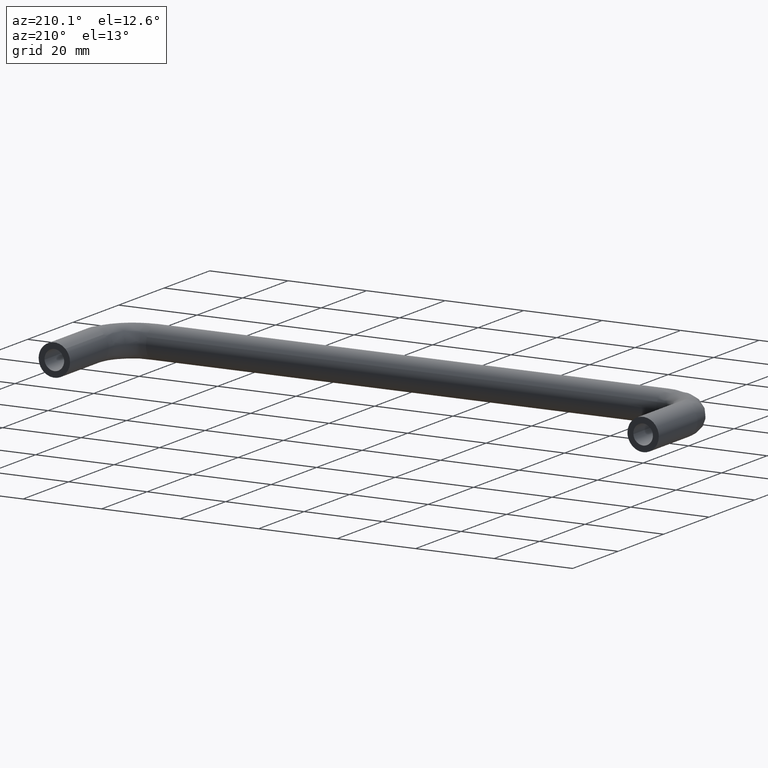
[diagram: clean part render]
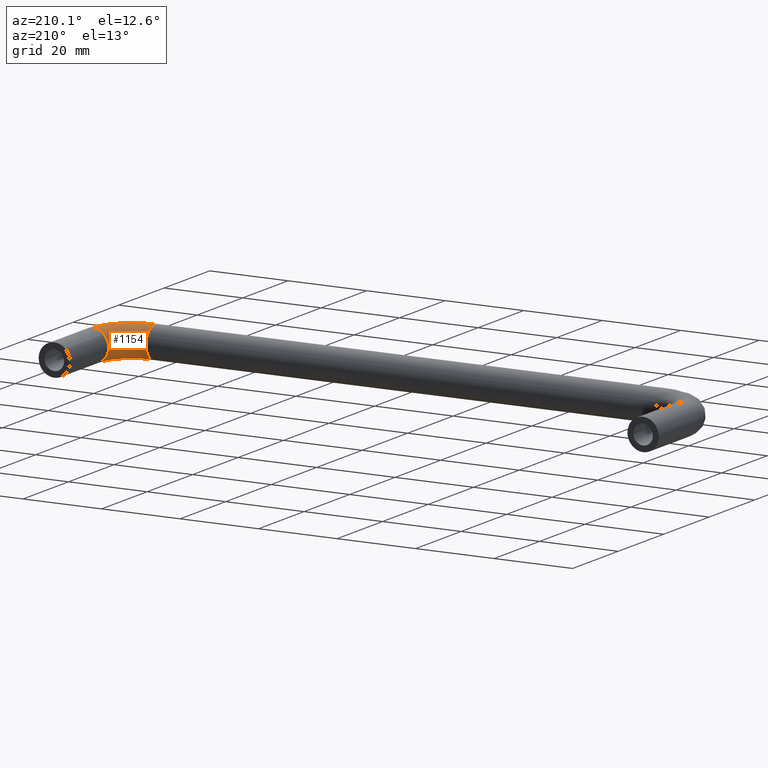
[diagram: same view with one face highlighted and labeled with its STEP entity id]
A machine part, auxiliary view. The second image highlights one B-rep face of the part: STEP entity #1154.
In plain terms, the highlighted face is a freeform B-spline surface patch.
Its self-contained STEP definition (entity closure, byte-faithful):
#428=CARTESIAN_POINT('',(149.949735840425290,-16.999999999984301,-3.999684176814744));
#429=VERTEX_POINT('',#428);
#445=CARTESIAN_POINT('',(146.0,-17.0,0.0));
#446=VERTEX_POINT('',#445);
#447=CARTESIAN_POINT('',(149.949735840425260,-16.999999999984301,-3.999684176814744));
#448=CARTESIAN_POINT('',(145.999999999999940,-17.0,-3.950047719547630));
#449=CARTESIAN_POINT('',(146.0,-17.0,0.0));
#457=(BOUNDED_CURVE()B_SPLINE_CURVE(2,(#447,#448,#449),.UNSPECIFIED.,.F.,.U.)B_SPLINE_CURVE_WITH_KNOTS((3,3),(0.252215704081906,0.500000000000000),.UNSPECIFIED.)CURVE()GEOMETRIC_REPRESENTATION_ITEM()RATIONAL_B_SPLINE_CURVE((0.994854295635648,0.709702639988498,1.0))REPRESENTATION_ITEM(''));
#458=EDGE_CURVE('',#429,#446,#457,.T.);
#460=CARTESIAN_POINT('',(147.196363281784100,-17.000000000000021,2.853002129734826));
#461=VERTEX_POINT('',#460);
#462=CARTESIAN_POINT('',(146.0,-17.0,0.0));
#463=CARTESIAN_POINT('',(146.000000000000060,-17.000000000000007,1.677339765870804));
#464=CARTESIAN_POINT('',(147.196363281784130,-17.000000000000025,2.853002129734826));
#472=(BOUNDED_CURVE()B_SPLINE_CURVE(2,(#462,#463,#464),.UNSPECIFIED.,.F.,.U.)B_SPLINE_CURVE_WITH_KNOTS((3,3),(0.500000000000000,0.626316793447803),.UNSPECIFIED.)CURVE()GEOMETRIC_REPRESENTATION_ITEM()RATIONAL_B_SPLINE_CURVE((1.0,0.852010671107516,0.853569642136559))REPRESENTATION_ITEM(''));
#473=EDGE_CURVE('',#446,#461,#472,.T.);
#591=CARTESIAN_POINT('',(150.278933189532300,-17.000000005944891,3.990262682553283));
#592=VERTEX_POINT('',#591);
#593=CARTESIAN_POINT('',(147.196363281784100,-17.000000000000021,2.853002129734826));
#594=CARTESIAN_POINT('',(148.363557349100920,-16.999999999999993,4.0));
#595=CARTESIAN_POINT('',(150.0,-17.0,4.0));
#596=CARTESIAN_POINT('',(150.139636647400290,-17.0,4.0));
#597=CARTESIAN_POINT('',(150.278933189532300,-17.000000005944887,3.990262682553283));
#605=(BOUNDED_CURVE()B_SPLINE_CURVE(2,(#593,#594,#595,#596,#597),.UNSPECIFIED.,.F.,.U.)B_SPLINE_CURVE_WITH_KNOTS((3,2,3),(0.626316793447803,0.750000000000000,0.762166329259532),.UNSPECIFIED.)CURVE()GEOMETRIC_REPRESENTATION_ITEM()RATIONAL_B_SPLINE_CURVE((0.853569642136559,0.855096110079032,1.0,0.985746258648125,0.972879842979988))REPRESENTATION_ITEM(''));
#606=EDGE_CURVE('',#461,#592,#605,.T.);
#650=CARTESIAN_POINT('',(140.0,-23.417578029477610,1.779396758769257));
#651=VERTEX_POINT('',#650);
#652=CARTESIAN_POINT('',(140.000000010251710,-27.278933189776939,3.990262682536179));
#653=VERTEX_POINT('',#652);
#654=CARTESIAN_POINT('',(140.000000000000030,-23.417578029477614,1.779396758769256));
#655=CARTESIAN_POINT('',(139.999999999999940,-24.520556473275803,4.0));
#656=CARTESIAN_POINT('',(140.0,-27.0,4.0));
#657=CARTESIAN_POINT('',(139.999999999999970,-27.139636647645887,4.0));
#658=CARTESIAN_POINT('',(140.000000010251650,-27.278933189776939,3.990262682536178));
#666=(BOUNDED_CURVE()B_SPLINE_CURVE(2,(#654,#655,#656,#657,#658),.UNSPECIFIED.,.F.,.U.)B_SPLINE_CURVE_WITH_KNOTS((3,2,3),(0.575619190626044,0.750000000000000,0.762166329280624),.UNSPECIFIED.)CURVE()GEOMETRIC_REPRESENTATION_ITEM()RATIONAL_B_SPLINE_CURVE((0.876408099965181,0.795700173772668,1.0,0.985746258623414,0.972879842935376))REPRESENTATION_ITEM(''));
#667=EDGE_CURVE('',#651,#653,#666,.T.);
#740=CARTESIAN_POINT('',(140.000000000115700,-24.246582932973361,-2.901498656702296));
#741=VERTEX_POINT('',#740);
#747=CARTESIAN_POINT('',(140.000000000366700,-26.949735840281949,-3.999684176812943));
#748=VERTEX_POINT('',#747);
#749=CARTESIAN_POINT('',(140.000000000366700,-26.949735840281949,-3.999684176812943));
#750=CARTESIAN_POINT('',(140.000000000221290,-25.383082967628233,-3.979995999691451));
#751=CARTESIAN_POINT('',(140.000000000115760,-24.246582932973364,-2.901498656702296));
#759=(BOUNDED_CURVE()B_SPLINE_CURVE(2,(#749,#750,#751),.UNSPECIFIED.,.F.,.U.)B_SPLINE_CURVE_WITH_KNOTS((3,3),(0.252215704094509,0.371049462387032),.UNSPECIFIED.)CURVE()GEOMETRIC_REPRESENTATION_ITEM()RATIONAL_B_SPLINE_CURVE((0.994854295606640,0.858099693000149,0.853699666128967))REPRESENTATION_ITEM(''));
#760=EDGE_CURVE('',#748,#741,#759,.T.);
#809=CARTESIAN_POINT('',(140.0,-23.0,0.0));
#810=VERTEX_POINT('',#809);
#811=CARTESIAN_POINT('',(140.0,-23.0,0.0));
#812=CARTESIAN_POINT('',(140.000000000000030,-23.000000000000004,0.938695717929676));
#813=CARTESIAN_POINT('',(139.999999999999940,-23.417578029477614,1.779396758769257));
#821=(BOUNDED_CURVE()B_SPLINE_CURVE(2,(#811,#812,#813),.UNSPECIFIED.,.F.,.U.)B_SPLINE_CURVE_WITH_KNOTS((3,3),(0.500000000000000,0.575619190626044),.UNSPECIFIED.)CURVE()GEOMETRIC_REPRESENTATION_ITEM()RATIONAL_B_SPLINE_CURVE((1.0,0.911406607413880,0.876408099965182))REPRESENTATION_ITEM(''));
#822=EDGE_CURVE('',#810,#651,#821,.T.);
#824=CARTESIAN_POINT('',(140.000000000115760,-24.246582932973364,-2.901498656702296));
#825=CARTESIAN_POINT('',(139.999999999999970,-23.0,-1.718536632860814));
#826=CARTESIAN_POINT('',(140.0,-23.0,0.0));
#834=(BOUNDED_CURVE()B_SPLINE_CURVE(2,(#824,#825,#826),.UNSPECIFIED.,.F.,.U.)B_SPLINE_CURVE_WITH_KNOTS((3,3),(0.371049462387032,0.500000000000000),.UNSPECIFIED.)CURVE()GEOMETRIC_REPRESENTATION_ITEM()RATIONAL_B_SPLINE_CURVE((0.853699666128967,0.848925047883251,1.0))REPRESENTATION_ITEM(''));
#835=EDGE_CURVE('',#741,#810,#834,.T.);
#1090=CARTESIAN_POINT('',(139.285232849516860,-27.254051255058759,3.990262710755871));
#1091=CARTESIAN_POINT('',(151.075932032510790,-28.075931724309864,3.990262710755869));
#1092=CARTESIAN_POINT('',(150.254051235169560,-16.285232564185716,3.990262710755872));
#1093=CARTESIAN_POINT('',(139.293173950873320,-27.140128195953455,3.998245639552521));
#1094=CARTESIAN_POINT('',(150.952877833911630,-27.952877529134813,3.998245639552521));
#1095=CARTESIAN_POINT('',(150.140128176285170,-16.293173668712253,3.998245639552521));
#1096=CARTESIAN_POINT('',(139.301133802077260,-27.025936151492424,3.999684176815264));
#1097=CARTESIAN_POINT('',(150.829533090293410,-27.829532788948779,3.999684176815264));
#1098=CARTESIAN_POINT('',(150.025936132045560,-16.301133523093657,3.999684176815263));
#1099=CARTESIAN_POINT('',(139.579260230315550,-23.035933744954079,4.049948336348676));
#1100=CARTESIAN_POINT('',(146.519724765259780,-23.519724583840723,4.049948336348674));
#1101=CARTESIAN_POINT('',(146.035933733246510,-16.579260062358539,4.049948336348676));
#1102=CARTESIAN_POINT('',(139.582755454073660,-22.985791256538757,0.050264159533411));
#1103=CARTESIAN_POINT('',(146.465563265593520,-23.465563085681516,0.050264159533411));
#1104=CARTESIAN_POINT('',(145.985791244928520,-16.582755287511844,0.050264159533411));
#1105=CARTESIAN_POINT('',(139.586250677831600,-22.935648768123418,-3.949420017281852));
#1106=CARTESIAN_POINT('',(146.411401765927170,-23.411401587522313,-3.949420017281853));
#1107=CARTESIAN_POINT('',(145.935648756610360,-16.586250512665156,-3.949420017281854));
#1108=CARTESIAN_POINT('',(139.308124249593280,-26.925651174661770,-3.999684176815264));
#1109=CARTESIAN_POINT('',(150.721210090960800,-27.721209792630368,-3.999684176815264));
#1110=CARTESIAN_POINT('',(149.925651155409500,-16.308123973400264,-3.999684176815263));
#1118=(BOUNDED_SURFACE()B_SPLINE_SURFACE(2,2,((#1090,#1093,#1096,#1099,#1102,#1105,#1108),(#1091,#1094,#1097,#1100,#1103,#1106,#1109),(#1092,#1095,#1098,#1101,#1104,#1107,#1110)),.UNSPECIFIED.,.F.,.F.,.U.)B_SPLINE_SURFACE_WITH_KNOTS((3,3),(3,2,2,3),(0.0,18.732059002914639),(0.0,0.265096427102886,6.892513425072401,13.519930423041920),.UNSPECIFIED.)GEOMETRIC_REPRESENTATION_ITEM()RATIONAL_B_SPLINE_SURFACE(((0.895729732449210,0.905606490046838,0.916342095240933,0.647951709431553,0.916342095240933,0.647951709431553,0.916342095240933),(0.587800221482116,0.594281596491894,0.601326568744382,0.425202094466791,0.601326568744382,0.425202094466791,0.601326568744382),(0.895729743804760,0.905606501527600,0.916342106857795,0.647951717645915,0.916342106857795,0.647951717645915,0.916342106857795)))REPRESENTATION_ITEM('')SURFACE());
#1119=ORIENTED_EDGE('',*,*,#606,.F.);
#1120=ORIENTED_EDGE('',*,*,#473,.F.);
#1121=ORIENTED_EDGE('',*,*,#458,.F.);
#1122=CARTESIAN_POINT('',(140.000000000366750,-26.949735840281942,-3.999684176812943));
#1123=CARTESIAN_POINT('',(149.949735840497990,-26.949735839733130,-3.999684176815261));
#1124=CARTESIAN_POINT('',(149.949735840425210,-16.999999999984297,-3.999684176814744));
#1132=(BOUNDED_CURVE()B_SPLINE_CURVE(2,(#1122,#1123,#1124),.UNSPECIFIED.,.F.,.U.)B_SPLINE_CURVE_WITH_KNOTS((3,3),(-1.734750791581804,-0.265249208338318),.UNSPECIFIED.)CURVE()GEOMETRIC_REPRESENTATION_ITEM()RATIONAL_B_SPLINE_CURVE((0.889029723549296,0.628638946230295,0.889029723577604))REPRESENTATION_ITEM(''));
#1133=EDGE_CURVE('',#748,#429,#1132,.T.);
#1134=ORIENTED_EDGE('',*,*,#1133,.F.);
#1135=ORIENTED_EDGE('',*,*,#760,.T.);
#1136=ORIENTED_EDGE('',*,*,#835,.T.);
#1137=ORIENTED_EDGE('',*,*,#822,.T.);
#1138=ORIENTED_EDGE('',*,*,#667,.T.);
#1139=CARTESIAN_POINT('',(140.000000010251630,-27.278933189776939,3.990262682536179));
#1140=CARTESIAN_POINT('',(150.278932994411950,-27.278932985798466,3.990262695361730));
#1141=CARTESIAN_POINT('',(150.278933189532300,-17.000000005944887,3.990262682553283));
#1149=(BOUNDED_CURVE()B_SPLINE_CURVE(2,(#1139,#1140,#1141),.UNSPECIFIED.,.F.,.U.)B_SPLINE_CURVE_WITH_KNOTS((3,3),(-1.734750789585729,-0.265249209543533),.UNSPECIFIED.)CURVE()GEOMETRIC_REPRESENTATION_ITEM()RATIONAL_B_SPLINE_CURVE((0.869031711157241,0.614498217100348,0.869031711458884))REPRESENTATION_ITEM(''));
#1150=EDGE_CURVE('',#653,#592,#1149,.T.);
#1151=ORIENTED_EDGE('',*,*,#1150,.T.);
#1152=EDGE_LOOP('',(#1119,#1120,#1121,#1134,#1135,#1136,#1137,#1138,#1151));
#1153=FACE_OUTER_BOUND('',#1152,.T.);
#1154=ADVANCED_FACE('',(#1153),#1118,.T.);